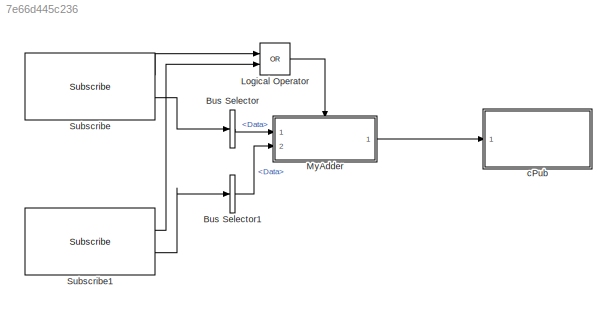
MODEL slx_7e66d445c236
KIND model
CONFIG AbsTol = auto
CONFIG EnableMultiTasking = off
CONFIG FixedStep = auto
CONFIG MaxStep = auto
CONFIG MinStep = auto
CONFIG RelTol = 1e-3
CONFIG SampleTimeConstraint = Unconstrained
CONFIG Solver = FixedStepAuto
CONFIG SolverName = FixedStepAuto
CONFIG StartTime = 0.0
CONFIG StopTime = Inf
BLOCK [BusSelector] Bus Selector
  OutputAsBus = off
  OutputSignals = Data
  Ports = [1, 1]
BLOCK [BusSelector] Bus Selector1
  OutputAsBus = off
  OutputSignals = Data
  Ports = [1, 1]
BLOCK [Logic] Logical Operator
  AllPortsSameDT = off
  IconShape = distinctive
  Operator = OR
  OutDataTypeStr = boolean
  Ports = [2, 1]
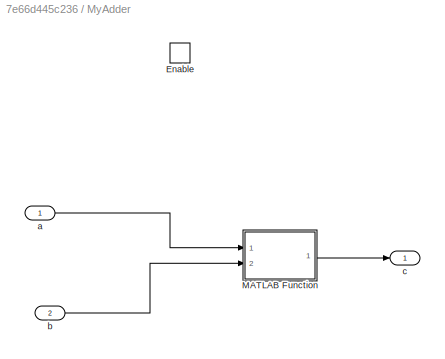
BLOCK [SubSystem] MyAdder
  Ports = [2, 1, 1]
  RequestExecContextInheritance = off
  Variant = off
BLOCK [EnablePort] MyAdder/Enable
  Ports = []
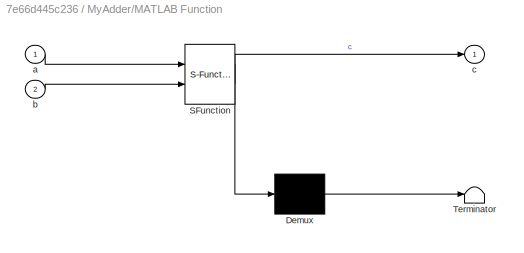
BLOCK [SubSystem] MyAdder/MATLAB Function
  ErrorFcn = Stateflow.Translate.translate
  PermitHierarchicalResolution = ExplicitOnly
  Ports = [2, 1]
  RequestExecContextInheritance = off
  SFBlockType = MATLAB Function
  TreatAsAtomicUnit = on
  Variant = off
BLOCK [Demux] MyAdder/MATLAB Function/ Demux 
  Outputs = 1
  Ports = [1, 1]
BLOCK [S-Function] MyAdder/MATLAB Function/ SFunction 
  EnableBusSupport = on
  FunctionName = sf_sfun
  PortCounts = [2 2]
  Ports = [2, 2]
  SFcnIsStateOwnerBlock = off
  SFunctionDeploymentMode = off
  Tag = Stateflow S-Function myAdderROS 2
BLOCK [Terminator] MyAdder/MATLAB Function/ Terminator 
BLOCK [Inport] MyAdder/MATLAB Function/a
  IconDisplay = Port number
BLOCK [Inport] MyAdder/MATLAB Function/b
  IconDisplay = Port number
  Port = 2
BLOCK [Outport] MyAdder/MATLAB Function/c
  IconDisplay = Port number
BLOCK [Inport] MyAdder/a
  IconDisplay = Port number
BLOCK [Inport] MyAdder/b
  IconDisplay = Port number
  Port = 2
BLOCK [Outport] MyAdder/c
  IconDisplay = Port number
BLOCK [Reference] Subscribe  REF=robotlib/Subscribe
  Ports = [0, 2]
  SourceBlock = robotlib/Subscribe
  SourceLibraryInfo = This block requires Robotics System Toolbox
  SourceProductBaseCode = RO
  SourceProductName = Robotics System Toolbox
  SourceType = ROS Subscribe
BLOCK [Reference] Subscribe1  REF=robotlib/Subscribe
  Ports = [0, 2]
  SourceBlock = robotlib/Subscribe
  SourceLibraryInfo = This block requires Robotics System Toolbox
  SourceProductBaseCode = RO
  SourceProductName = Robotics System Toolbox
  SourceType = ROS Subscribe
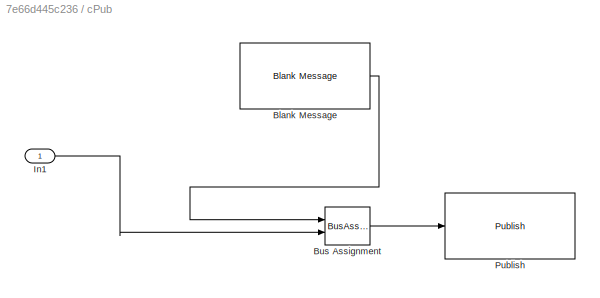
BLOCK [SubSystem] cPub
  Ports = [1]
  RequestExecContextInheritance = off
  Variant = off
BLOCK [Reference] cPub/Blank Message  REF=robotlib/Blank Message
  Ports = [0, 1]
  SourceBlock = robotlib/Blank Message
  SourceLibraryInfo = This block requires Robotics System Toolbox
  SourceProductBaseCode = RO
  SourceProductName = Robotics System Toolbox
  SourceType = ROS Blank Message
BLOCK [BusAssignment] cPub/Bus Assignment
  AssignedSignals = Data
  Ports = [2, 1]
BLOCK [Inport] cPub/In1
  IconDisplay = Port number
BLOCK [Reference] cPub/Publish  REF=robotlib/Publish
  Ports = [1]
  SourceBlock = robotlib/Publish
  SourceLibraryInfo = This block requires Robotics System Toolbox
  SourceProductBaseCode = RO
  SourceProductName = Robotics System Toolbox
  SourceType = ROS Publish
LINE Bus Selector1:1 -> MyAdder:2
LINE Bus Selector:1 -> MyAdder:1
LINE Logical Operator:1 -> MyAdder:enable
LINE MyAdder/MATLAB Function:1 -> MyAdder/c:1
LINE MyAdder/a:1 -> MyAdder/MATLAB Function:1
LINE MyAdder/b:1 -> MyAdder/MATLAB Function:2
LINE MyAdder:1 -> cPub:1
LINE Subscribe1:1 -> Logical Operator:2
LINE Subscribe1:2 -> Bus Selector1:1
LINE Subscribe:1 -> Logical Operator:1
LINE Subscribe:2 -> Bus Selector:1
LINE cPub/Blank Message:1 -> cPub/Bus Assignment:1
LINE cPub/Bus Assignment:1 -> cPub/Publish:1
LINE cPub/In1:1 -> cPub/Bus Assignment:2
CHART MyAdder/MATLAB Function states=1 transitions=1
  STATE_LABEL 'eML_blk_kernel()'
  STATE_LABEL "SCRIPT:\nfunction c = fcn(a, b)\n%#codegen\ncoder.inline('never');\nc = 0;\nc = myAdder(a,b);\n"
